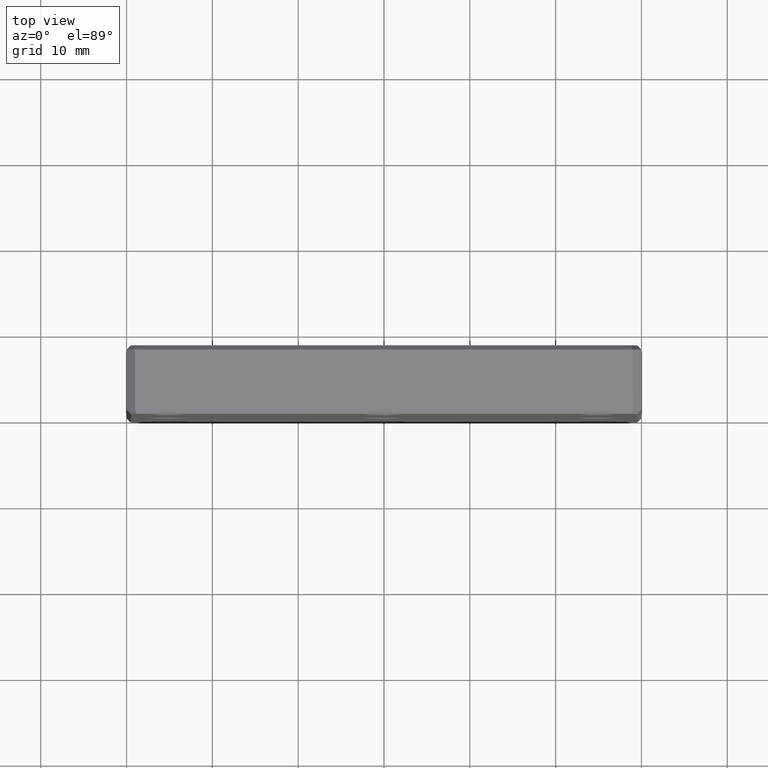
[diagram: clean part render]
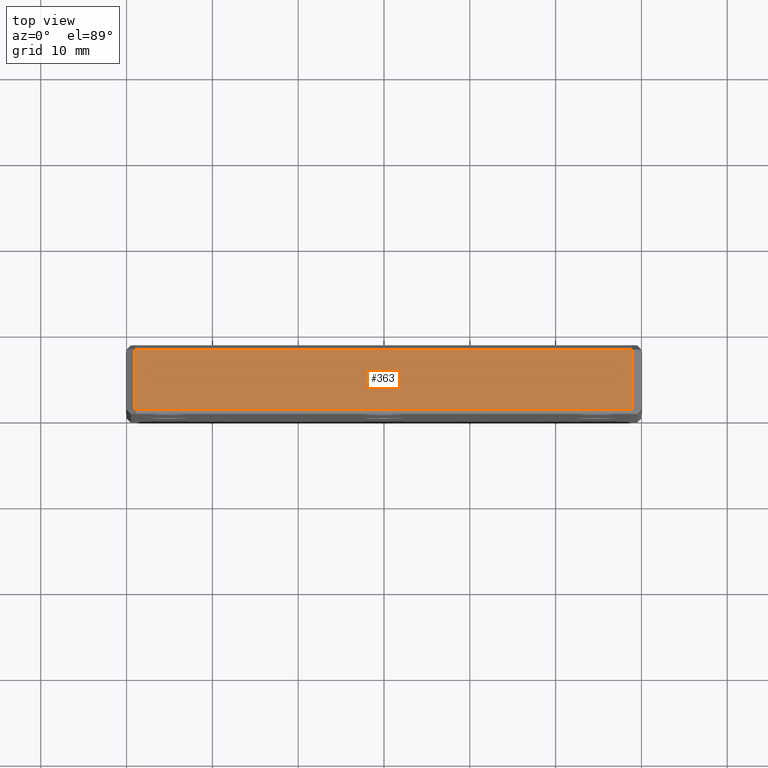
[diagram: same view with one face highlighted and labeled with its STEP entity id]
A machine part, top view. The second image highlights one B-rep face of the part: STEP entity #363.
In plain terms, the highlighted planar face has unit normal (0, 0, -1).
Its self-contained STEP definition (entity closure, byte-faithful):
#41 = CARTESIAN_POINT ( 'NONE',  ( -28.99999999999999645, 8.000000000000000000, 30.00000000000000711 ) ) ;
#57 = EDGE_CURVE ( 'NONE', #297, #988, #854, .T. ) ;
#116 = CARTESIAN_POINT ( 'NONE',  ( 29.00000000000000711, 7.500000000000000000, 30.00000000000000711 ) ) ;
#125 = DIRECTION ( 'NONE',  ( 0.000000000000000000, 0.000000000000000000, -1.000000000000000000 ) ) ;
#136 = ORIENTED_EDGE ( 'NONE', *, *, #1020, .T. ) ;
#174 = DIRECTION ( 'NONE',  ( -0.000000000000000000, -1.000000000000000000, -0.000000000000000000 ) ) ;
#222 = DIRECTION ( 'NONE',  ( -0.000000000000000000, -1.000000000000000000, -0.000000000000000000 ) ) ;
#274 = ORIENTED_EDGE ( 'NONE', *, *, #57, .T. ) ;
#297 = VERTEX_POINT ( 'NONE', #1113 ) ;
#314 = FACE_OUTER_BOUND ( 'NONE', #1136, .T. ) ;
#323 = VECTOR ( 'NONE', #222, 1000.000000000000000 ) ;
#363 = ADVANCED_FACE ( 'NONE', ( #314 ), #781, .F. ) ;
#433 = EDGE_CURVE ( 'NONE', #1179, #1034, #567, .T. ) ;
#546 = EDGE_CURVE ( 'NONE', #1179, #297, #631, .T. ) ;
#567 = LINE ( 'NONE', #818, #323 ) ;
#582 = DIRECTION ( 'NONE',  ( -1.000000000000000000, 0.000000000000000000, -0.000000000000000000 ) ) ;
#631 = LINE ( 'NONE', #1320, #1405 ) ;
#639 = CARTESIAN_POINT ( 'NONE',  ( -28.99999999999999645, 0.5000000000000004441, 30.00000000000000711 ) ) ;
#661 = DIRECTION ( 'NONE',  ( 1.000000000000000000, 0.000000000000000000, 0.000000000000000000 ) ) ;
#743 = AXIS2_PLACEMENT_3D ( 'NONE', #1251, #125, #582 ) ;
#780 = CARTESIAN_POINT ( 'NONE',  ( 29.00000000000000711, 0.5000000000000004441, 30.00000000000000711 ) ) ;
#781 = PLANE ( 'NONE',  #743 ) ;
#818 = CARTESIAN_POINT ( 'NONE',  ( 29.00000000000000711, 8.000000000000000000, 30.00000000000000711 ) ) ;
#854 = LINE ( 'NONE', #41, #975 ) ;
#892 = CARTESIAN_POINT ( 'NONE',  ( 28.29289321881346098, 0.5000000000000004441, 30.00000000000000711 ) ) ;
#975 = VECTOR ( 'NONE', #174, 1000.000000000000000 ) ;
#988 = VERTEX_POINT ( 'NONE', #639 ) ;
#1020 = EDGE_CURVE ( 'NONE', #988, #1034, #1133, .T. ) ;
#1034 = VERTEX_POINT ( 'NONE', #780 ) ;
#1075 = VECTOR ( 'NONE', #661, 1000.000000000000000 ) ;
#1113 = CARTESIAN_POINT ( 'NONE',  ( -28.99999999999999645, 7.500000000000000000, 30.00000000000000711 ) ) ;
#1133 = LINE ( 'NONE', #892, #1075 ) ;
#1136 = EDGE_LOOP ( 'NONE', ( #274, #136, #1184, #1268 ) ) ;
#1179 = VERTEX_POINT ( 'NONE', #116 ) ;
#1184 = ORIENTED_EDGE ( 'NONE', *, *, #433, .F. ) ;
#1251 = CARTESIAN_POINT ( 'NONE',  ( -28.99999999999999645, 8.000000000000000000, 30.00000000000000711 ) ) ;
#1268 = ORIENTED_EDGE ( 'NONE', *, *, #546, .T. ) ;
#1320 = CARTESIAN_POINT ( 'NONE',  ( -28.99999999999999645, 7.499999999999992895, 30.00000000000000711 ) ) ;
#1405 = VECTOR ( 'NONE', #1445, 1000.000000000000000 ) ;
#1445 = DIRECTION ( 'NONE',  ( -1.000000000000000000, 0.000000000000000000, 0.000000000000000000 ) ) ;